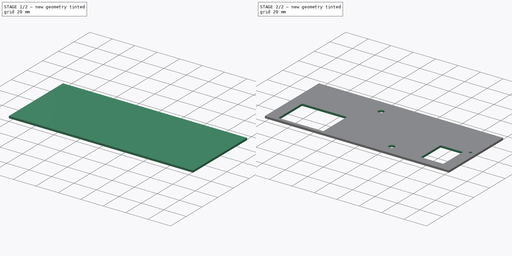
[diagram: build sequence overview — one tinted view per stage of 2, left to right]
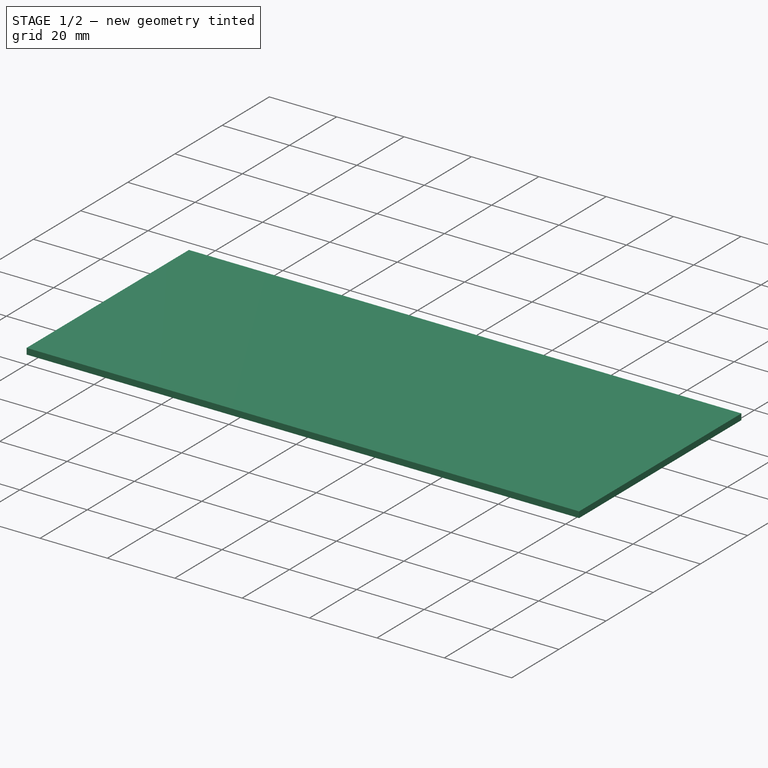
[diagram: stage 1 of 2 — iso view after this stage's code; geometry added in this stage tinted green]
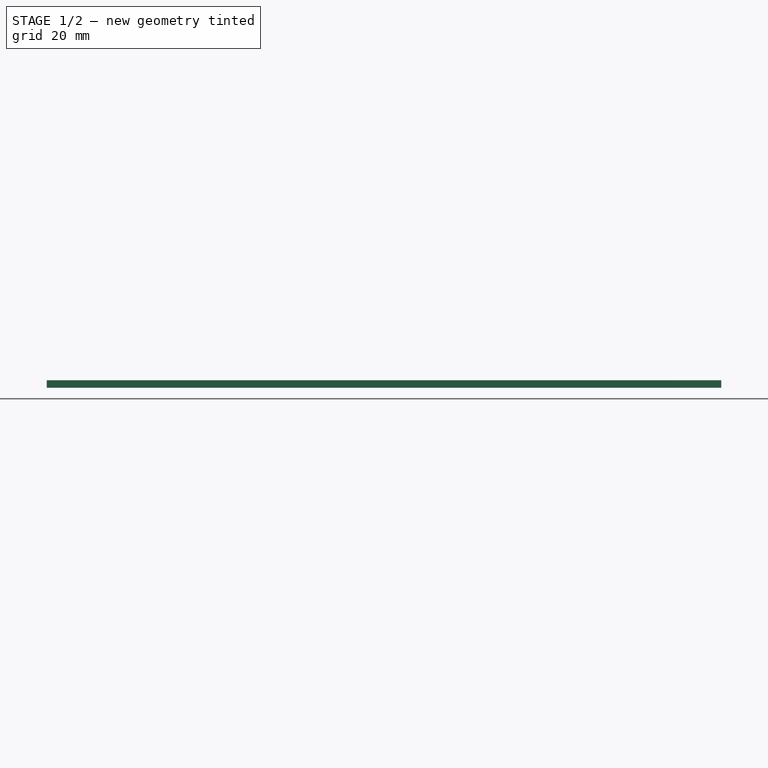
[diagram: stage 1 of 2 — front view after this stage's code; geometry added in this stage tinted green]
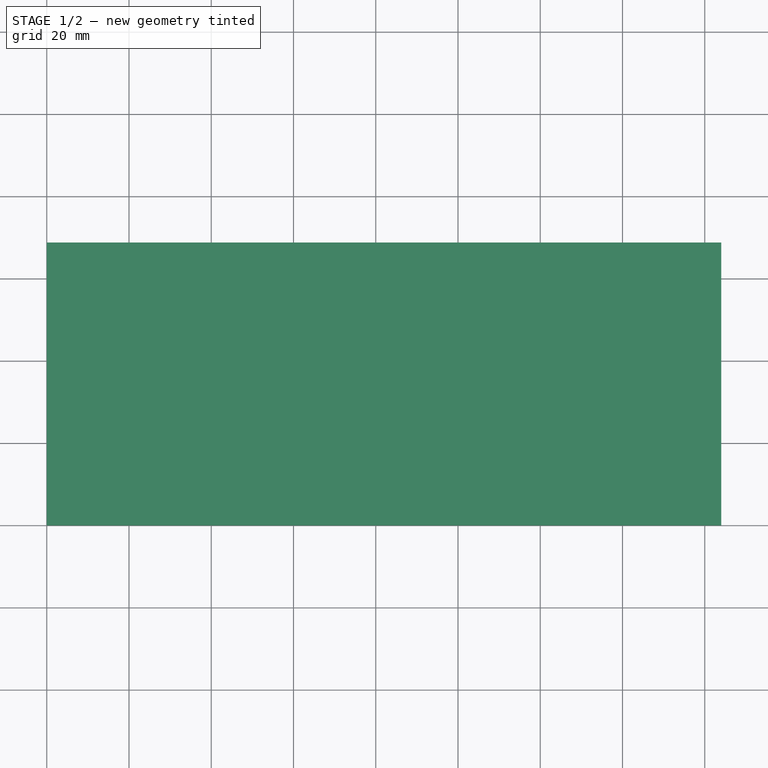
[diagram: stage 1 of 2 — top view after this stage's code; geometry added in this stage tinted green]
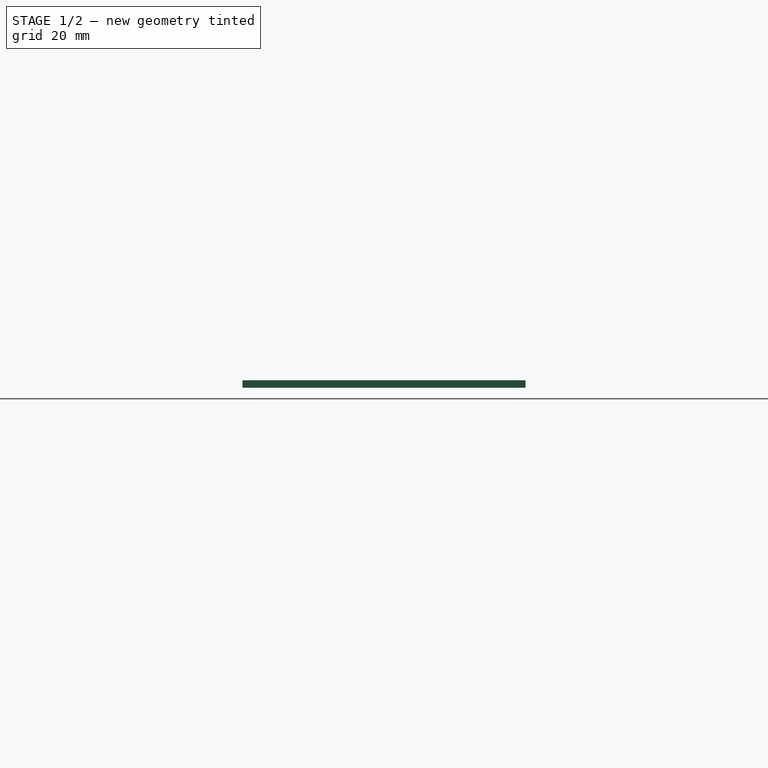
[diagram: stage 1 of 2 — right view after this stage's code; geometry added in this stage tinted green]
FCSTD DOCUMENT  (FreeCAD 0.20R29603 (Git))
Label: 3D_Lid
License: All rights reserved
LicenseURL: http://en.wikipedia.org/wiki/All_rights_reserved
objects: Sketcher::SketchObject×2, PartDesign::Pad×1, PartDesign::Pocket×1, PartDesign::Body×1
note: 7 computed .brp shape members not serialized (recipe doc carries the construction recipe); baked Part::Feature solids carry a one-line shape summary decoded from their .brp

FEATURE [Sketcher::SketchObject] Sketch
  FullyConstrained = true
  MapMode = 5
  Support = -> [XY_Plane]
  sketch-geometry (4):
    g0: LineSegment StartX=0 StartY=0 StartZ=0 EndX=164 EndY=0 EndZ=0
    g1: LineSegment StartX=164 StartY=0 StartZ=0 EndX=164 EndY=68.8 EndZ=0
    g2: LineSegment StartX=164 StartY=68.8 StartZ=0 EndX=0 EndY=68.8 EndZ=0
    g3: LineSegment StartX=0 StartY=68.8 StartZ=0 EndX=0 EndY=0 EndZ=0
  constraints (12):
    c: Coincident(g0,g1)
    c: Coincident(g1,g2)
    c: Coincident(g2,g3)
    c: Coincident(g3,g0)
    c: Horizontal(g0)
    c: Horizontal(g2)
    c: Vertical(g1)
    c: Vertical(g3)
    c: DistanceX(g0) = 0
    c: DistanceY(g0) = 0
    c: DistanceX(g2,g2) = 164
    c: DistanceY(g3,g3) = 68.8
FEATURE [PartDesign::Pad] Pad
  Direction = (0,0,1)
  Length = 1.8
  Length2 = 10
  Profile = -> Sketch
  ReferenceAxis = -> Sketch [N_Axis]
  Type = 0
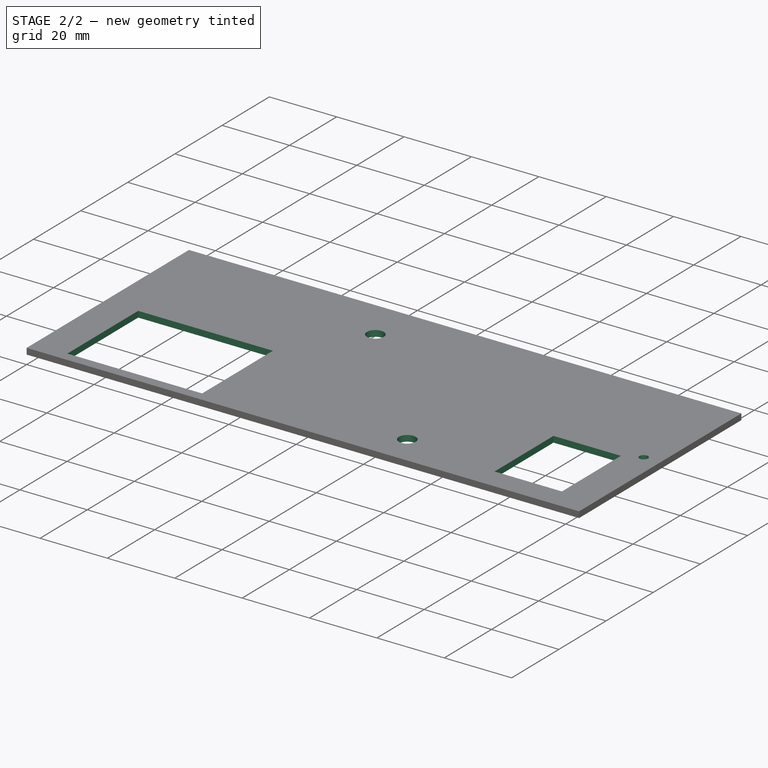
[diagram: stage 2 of 2 — iso view after this stage's code; geometry added in this stage tinted green]
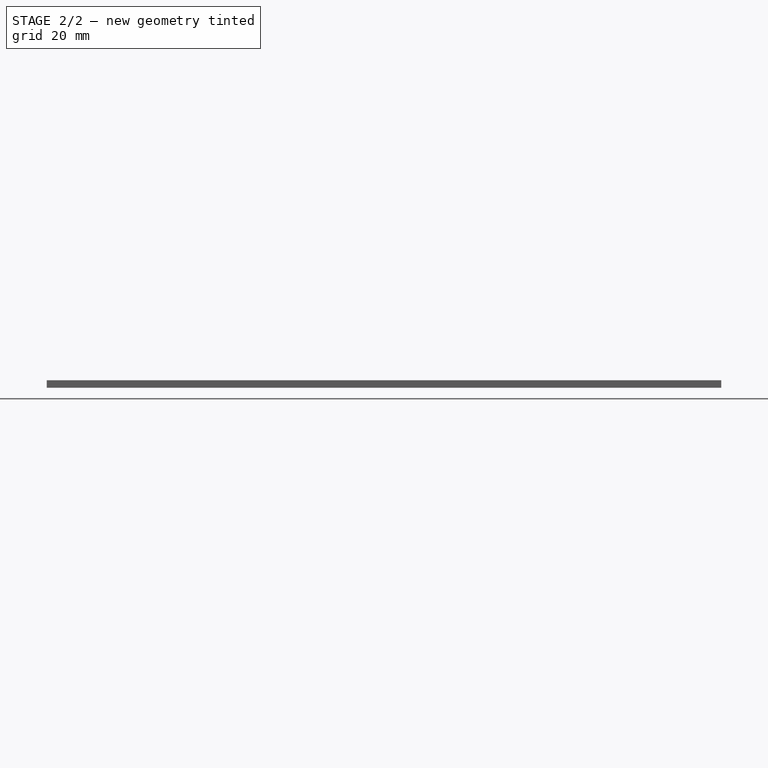
[diagram: stage 2 of 2 — front view after this stage's code; geometry added in this stage tinted green]
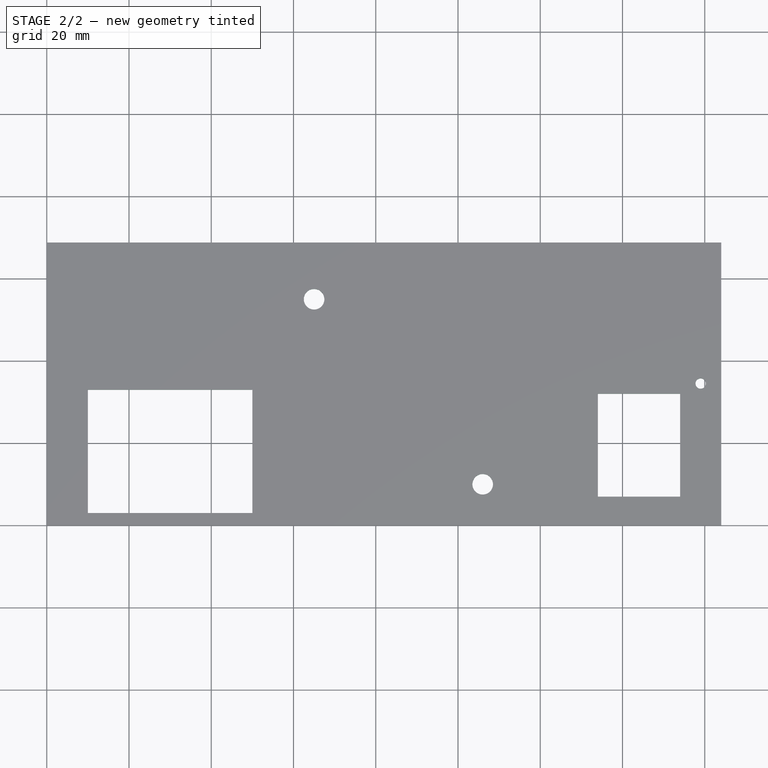
[diagram: stage 2 of 2 — top view after this stage's code; geometry added in this stage tinted green]
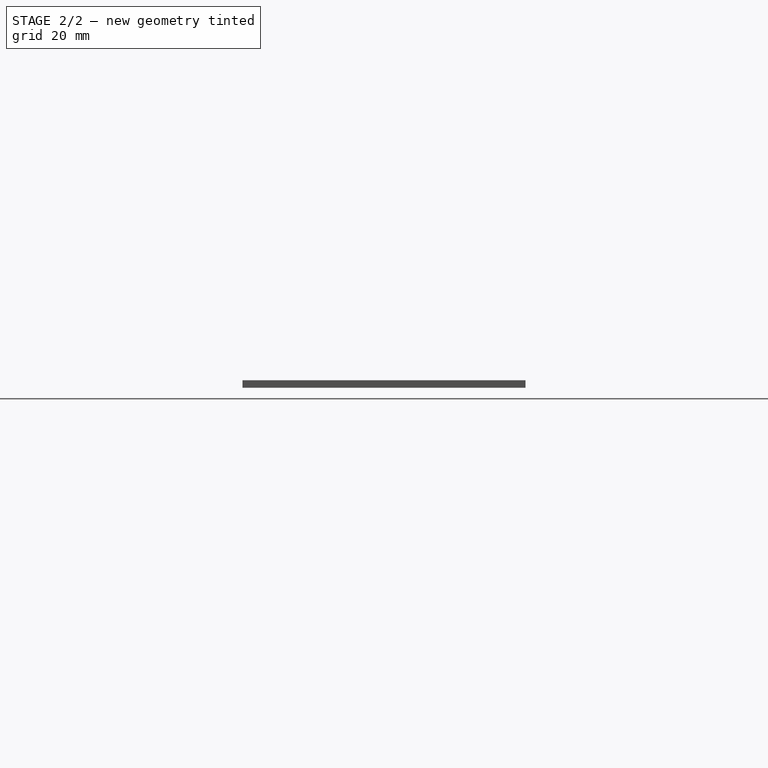
[diagram: stage 2 of 2 — right view after this stage's code; geometry added in this stage tinted green]
FEATURE [Sketcher::SketchObject] Sketch001
  FullyConstrained = true
  MapMode = 5
  Placement = pos=(0,0,1.8) rot=(0,0,1;0rad)
  Support = -> [Pad]
  sketch-geometry (11):
    g0: LineSegment StartX=10 StartY=3 StartZ=0 EndX=50 EndY=3 EndZ=0
    g1: LineSegment StartX=50 StartY=3 StartZ=0 EndX=50 EndY=33 EndZ=0
    g2: LineSegment StartX=50 StartY=33 StartZ=0 EndX=10 EndY=33 EndZ=0
    g3: LineSegment StartX=10 StartY=33 StartZ=0 EndX=10 EndY=3 EndZ=0
    g4: Circle CenterX=65 CenterY=55 CenterZ=0 NormalX=0 NormalY=0 NormalZ=1 AngleXU=0 Radius=2.5
    g5: Circle CenterX=106 CenterY=10 CenterZ=0 NormalX=0 NormalY=0 NormalZ=1 AngleXU=0 Radius=2.5
    g6: Circle CenterX=159 CenterY=34.5 CenterZ=0 NormalX=0 NormalY=0 NormalZ=1 AngleXU=0 Radius=1.25
    g7: LineSegment StartX=154 StartY=7 StartZ=0 EndX=134 EndY=7 EndZ=0
    g8: LineSegment StartX=134 StartY=7 StartZ=0 EndX=134 EndY=32 EndZ=0
    g9: LineSegment StartX=134 StartY=32 StartZ=0 EndX=154 EndY=32 EndZ=0
    g10: LineSegment StartX=154 StartY=32 StartZ=0 EndX=154 EndY=7 EndZ=0
  constraints (33):
    c: Coincident(g0,g1)
    c: Coincident(g1,g2)
    c: Coincident(g2,g3)
    c: Coincident(g3,g0)
    c: Horizontal(g0)
    c: Horizontal(g2)
    c: Vertical(g1)
    c: Vertical(g3)
    c: DistanceX(g0) = 10
    c: DistanceY(g0) = 3
    c: DistanceX(g0,g0) = 40
    c: DistanceY(g1,g1) = 30
    c: Coincident(g7,g8)
    c: Coincident(g8,g9)
    c: Coincident(g9,g10)
    c: Coincident(g10,g7)
    c: Horizontal(g7)
    c: Horizontal(g9)
    c: Vertical(g8)
    c: Vertical(g10)
    c: Diameter(g5) = 5
    c: Diameter(g4) = 5
    c: Diameter(g6) = 2.5
    c: DistanceY(g10,g10) = 25
    c: DistanceX(g7,g7) = 20
    c: DistanceX(g4) = 65
    c: DistanceY(g4) = 55
    c: DistanceX(g5) = 106
    c: DistanceY(g5) = 10
    c: DistanceX(g7) = 134
    c: DistanceY(g7) = 7
    c: DistanceX(g6) = 159
    c: DistanceY(g6) = 34.5
FEATURE [PartDesign::Pocket] Pocket
  BaseFeature = -> Pad
  Direction = (0,0,-1)
  Length = 5
  Length2 = 5
  Profile = -> Sketch001
  ReferenceAxis = -> Sketch001 [N_Axis]
  Type = 0
FEATURE [PartDesign::Body] Body
  Group = -> [Sketch,Pad,Sketch001,Pocket]
  Origin = -> Origin
  Tip = -> Pocket
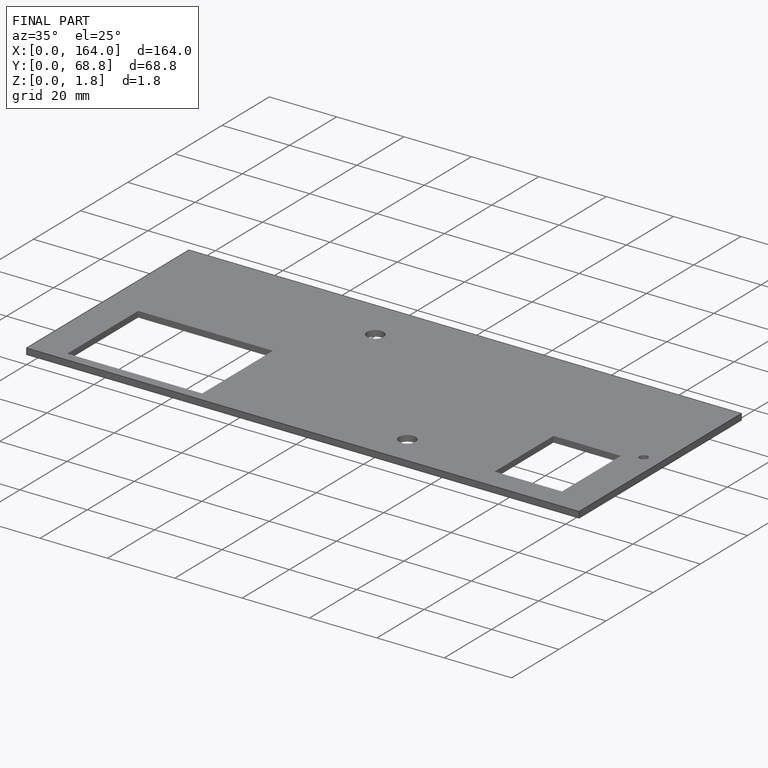
[diagram: finished part — iso view with bounding-box wireframe]
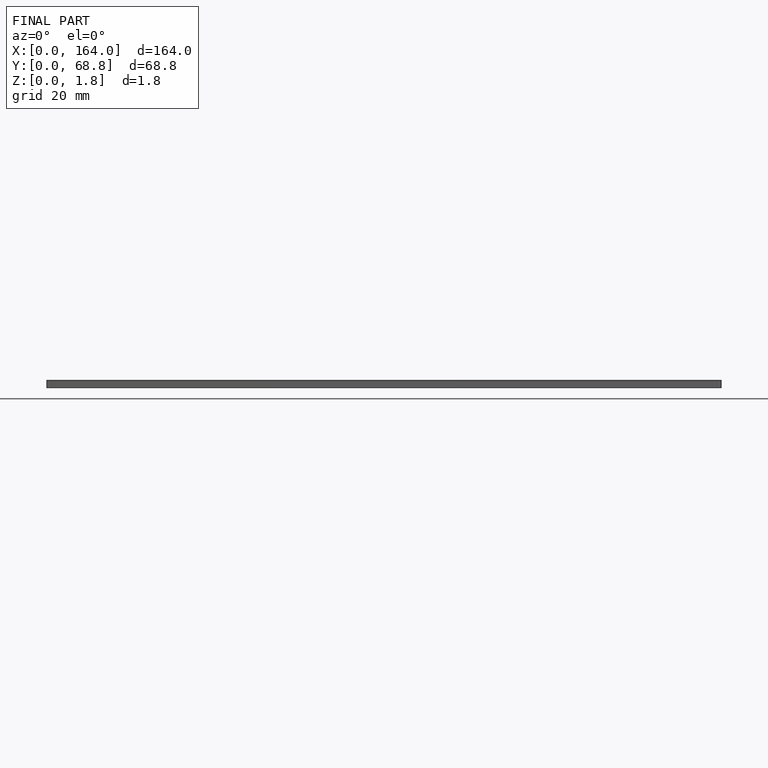
[diagram: finished part — front view with bounding-box wireframe]
